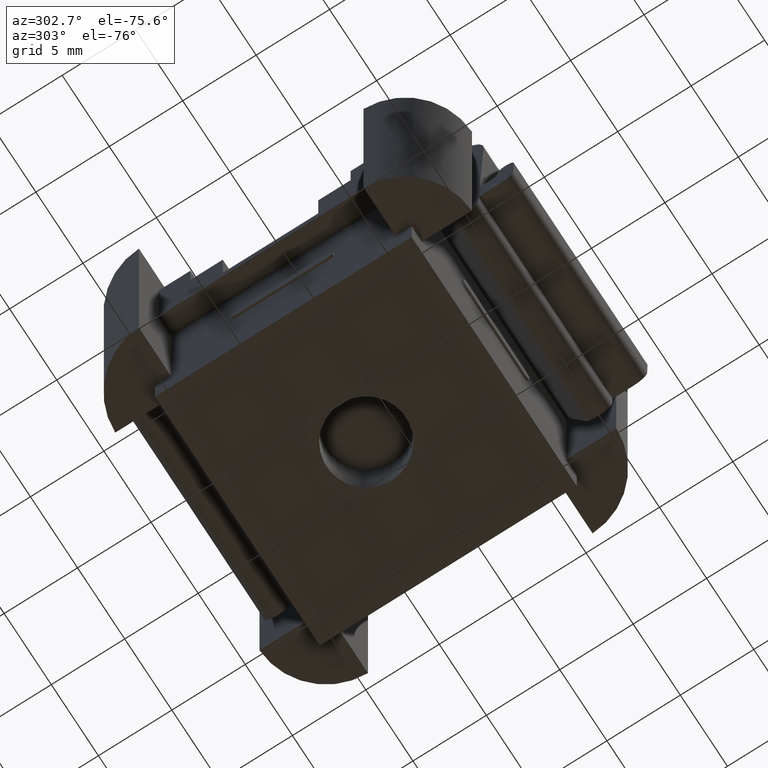
[diagram: clean part render]
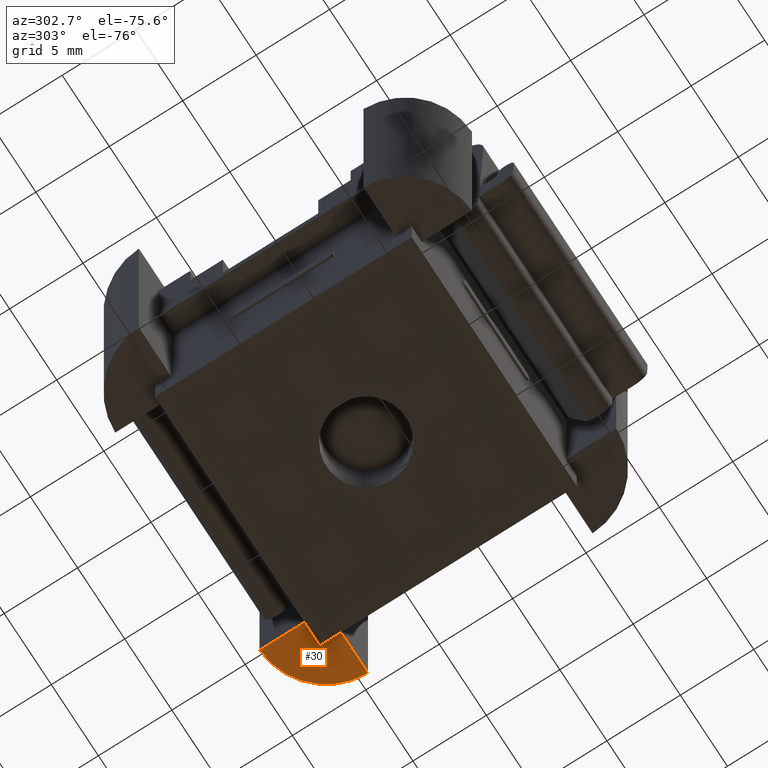
[diagram: same view with one face highlighted and labeled with its STEP entity id]
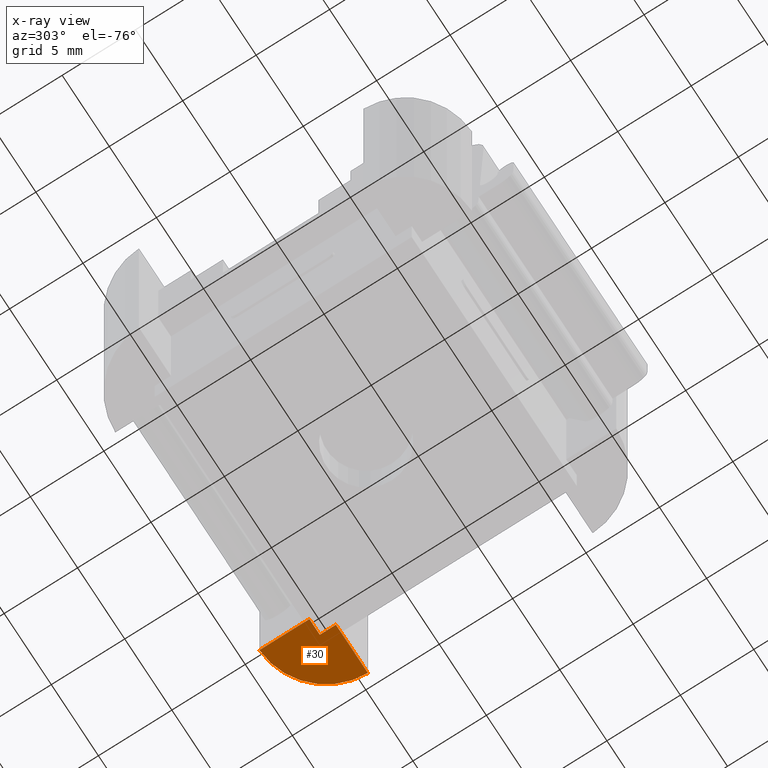
[diagram: x-ray of the same camera — body ghosted, the highlighted face saturated]
A machine part, auxiliary view. The second image highlights one B-rep face of the part: STEP entity #30.
The next image is the same camera in x-ray: the body ghosted, the highlighted face saturated — about 0% of this face is hidden behind the body in this view.
In plain terms, the highlighted planar face has unit normal (0, 0, -1).
Its self-contained STEP definition (entity closure, byte-faithful):
#30 = ADVANCED_FACE ( 'NONE', ( #2970 ), #2933, .T. ) ;
#543 = AXIS2_PLACEMENT_3D ( 'NONE', #2927, #2930, #2929 ) ;
#638 = CIRCLE ( 'NONE', #692, 4.599999999999996100 ) ;
#660 = VECTOR ( 'NONE', #2239, 1000.000000000000000 ) ;
#692 = AXIS2_PLACEMENT_3D ( 'NONE', #2283, #2294, #2285 ) ;
#736 = VECTOR ( 'NONE', #1155, 1000.000000000000000 ) ;
#749 = VECTOR ( 'NONE', #1186, 1000.000000000000000 ) ;
#838 = VECTOR ( 'NONE', #1516, 1000.000000000000000 ) ;
#1152 = LINE ( 'NONE', #1161, #736 ) ;
#1155 = DIRECTION ( 'NONE',  ( 1.000000000000000000, -0.0000000000000000000, -0.0000000000000000000 ) ) ;
#1161 = CARTESIAN_POINT ( 'NONE',  ( 16.50909090909099000, 20.89394666863502400, 2.299999999999999800 ) ) ;
#1168 = LINE ( 'NONE', #1171, #749 ) ;
#1171 = CARTESIAN_POINT ( 'NONE',  ( 7.759090909091008300, 19.79524547676573900, 2.299999999999999800 ) ) ;
#1186 = DIRECTION ( 'NONE',  ( 1.000000000000000000, 0.0000000000000000000, 0.0000000000000000000 ) ) ;
#1516 = DIRECTION ( 'NONE',  ( 0.0000000000000000000, -1.000000000000000000, 0.0000000000000000000 ) ) ;
#1536 = CARTESIAN_POINT ( 'NONE',  ( 16.50909090909099000, 20.89394666863502400, 2.299999999999999800 ) ) ;
#1555 = LINE ( 'NONE', #1536, #838 ) ;
#1819 = CARTESIAN_POINT ( 'NONE',  ( 19.90800382411781300, 19.79524547676573900, 2.299999999999999800 ) ) ;
#1820 = CARTESIAN_POINT ( 'NONE',  ( 16.50909090909099000, 20.89394666863502400, 2.299999999999999800 ) ) ;
#1837 = CARTESIAN_POINT ( 'NONE',  ( 15.40677301337948700, 24.29420820835009200, 2.299999999999999800 ) ) ;
#1854 = CARTESIAN_POINT ( 'NONE',  ( 16.50909090909099000, 19.79524547676573900, 2.299999999999999800 ) ) ;
#1856 = CARTESIAN_POINT ( 'NONE',  ( 15.40677301337948700, 20.89394666863502400, 2.299999999999999800 ) ) ;
#2215 = LINE ( 'NONE', #2249, #660 ) ;
#2239 = DIRECTION ( 'NONE',  ( 0.0000000000000000000, 1.000000000000000000, 0.0000000000000000000 ) ) ;
#2249 = CARTESIAN_POINT ( 'NONE',  ( 15.40677301337948700, 48.14154428489644700, 2.299999999999999800 ) ) ;
#2283 = CARTESIAN_POINT ( 'NONE',  ( 15.30909090909105100, 19.69524547676574500, 2.299999999999999800 ) ) ;
#2285 = DIRECTION ( 'NONE',  ( -1.000000000000000000, 0.0000000000000000000, 0.0000000000000000000 ) ) ;
#2294 = DIRECTION ( 'NONE',  ( 0.0000000000000000000, 0.0000000000000000000, -1.000000000000000000 ) ) ;
#2487 = ORIENTED_EDGE ( 'NONE', *, *, #3922, .T. ) ;
#2492 = ORIENTED_EDGE ( 'NONE', *, *, #4031, .F. ) ;
#2512 = ORIENTED_EDGE ( 'NONE', *, *, #4025, .F. ) ;
#2552 = ORIENTED_EDGE ( 'NONE', *, *, #4104, .F. ) ;
#2558 = ORIENTED_EDGE ( 'NONE', *, *, #3945, .T. ) ;
#2927 = CARTESIAN_POINT ( 'NONE',  ( 7.759090909091004700, 12.14294582996978600, 2.299999999999999400 ) ) ;
#2929 = DIRECTION ( 'NONE',  ( -1.000000000000000000, 0.0000000000000000000, -0.0000000000000000000 ) ) ;
#2930 = DIRECTION ( 'NONE',  ( 0.0000000000000000000, 0.0000000000000000000, -1.000000000000000000 ) ) ;
#2933 = PLANE ( 'NONE',  #543 ) ;
#2970 = FACE_OUTER_BOUND ( 'NONE', #3817, .T. ) ;
#3552 = VERTEX_POINT ( 'NONE', #1819 ) ;
#3562 = VERTEX_POINT ( 'NONE', #1856 ) ;
#3569 = VERTEX_POINT ( 'NONE', #1820 ) ;
#3573 = VERTEX_POINT ( 'NONE', #1854 ) ;
#3600 = VERTEX_POINT ( 'NONE', #1837 ) ;
#3817 = EDGE_LOOP ( 'NONE', ( #2552, #2512, #2487, #2558, #2492 ) ) ;
#3922 = EDGE_CURVE ( 'NONE', #3562, #3600, #2215, .T. ) ;
#3945 = EDGE_CURVE ( 'NONE', #3600, #3552, #638, .T. ) ;
#4025 = EDGE_CURVE ( 'NONE', #3562, #3569, #1152, .T. ) ;
#4031 = EDGE_CURVE ( 'NONE', #3573, #3552, #1168, .T. ) ;
#4104 = EDGE_CURVE ( 'NONE', #3569, #3573, #1555, .T. ) ;